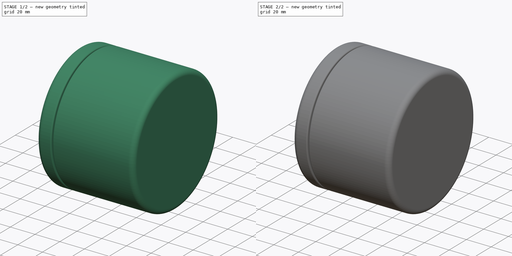
[diagram: build sequence overview — one tinted view per stage of 2, left to right]
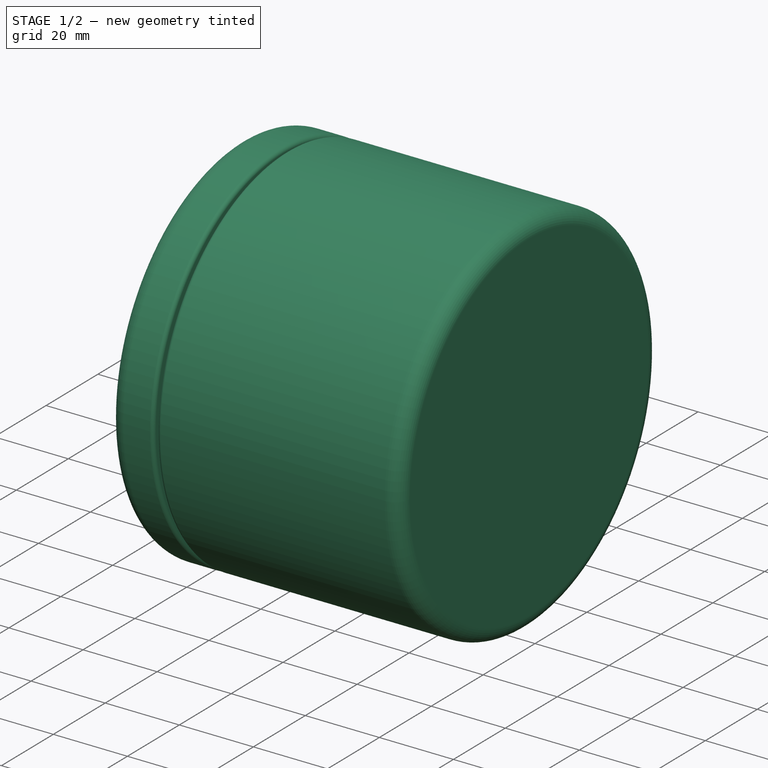
[diagram: stage 1 of 2 — iso view after this stage's code; geometry added in this stage tinted green]
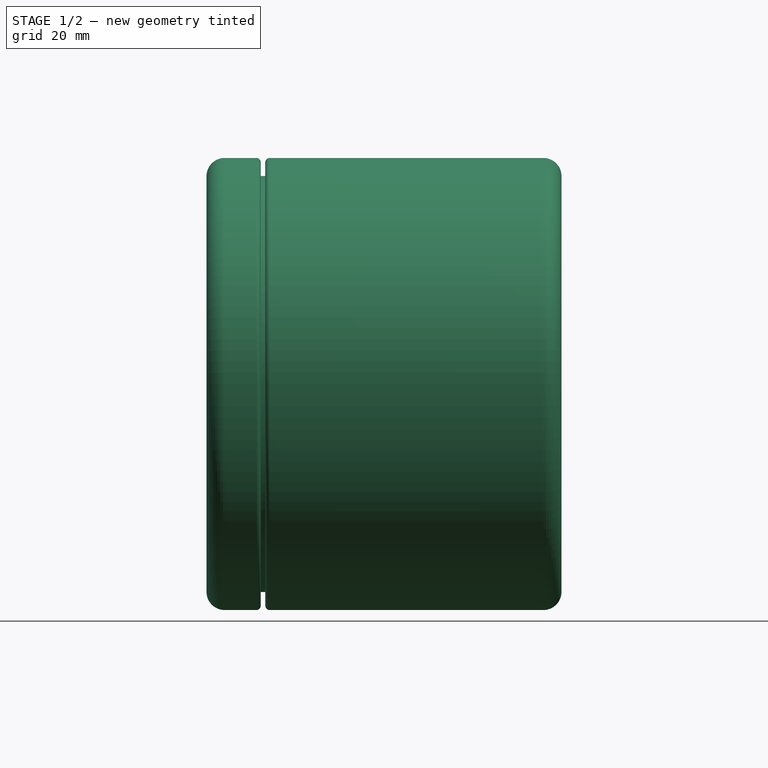
[diagram: stage 1 of 2 — front view after this stage's code; geometry added in this stage tinted green]
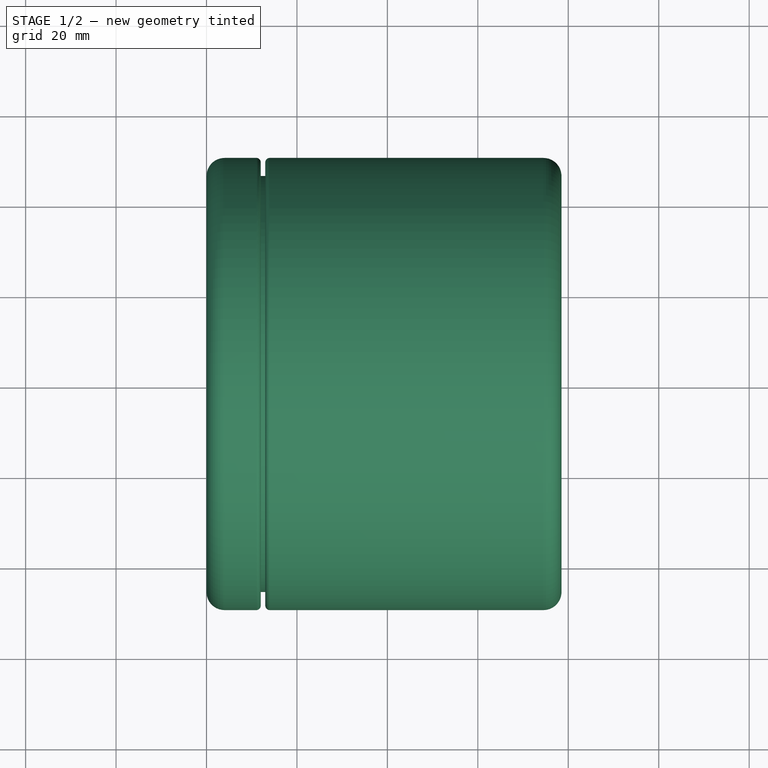
[diagram: stage 1 of 2 — top view after this stage's code; geometry added in this stage tinted green]
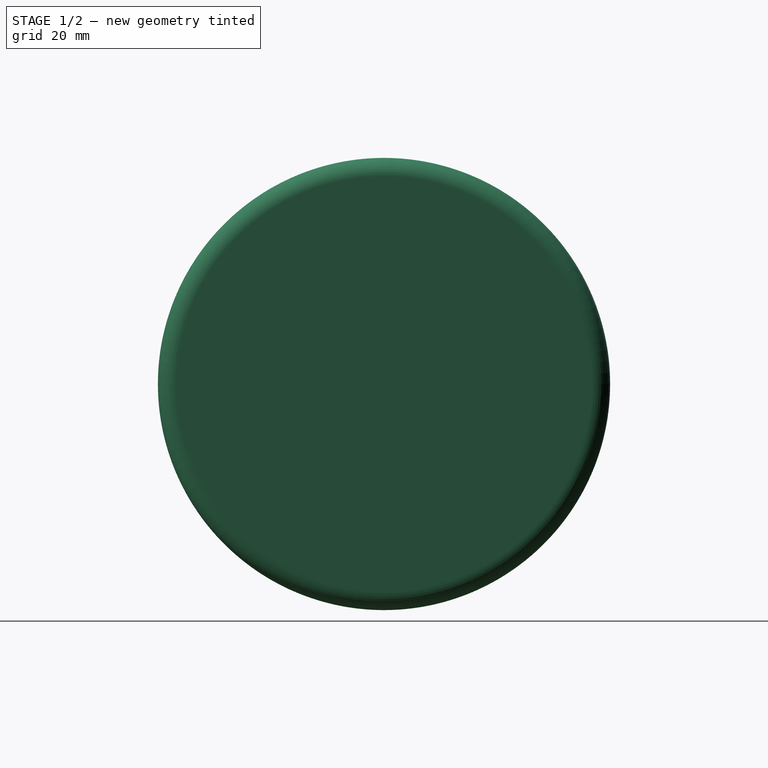
[diagram: stage 1 of 2 — right view after this stage's code; geometry added in this stage tinted green]
FCSTD DOCUMENT  (FreeCAD 0.19R24267 +99 (Git))
Label: housing
License: All rights reserved
LicenseURL: http://en.wikipedia.org/wiki/All_rights_reserved
objects: TechDraw::DrawViewDimension×17, Sketcher::SketchObject×5, PartDesign::Revolution×4, PartDesign::Body×4, TechDraw::DrawViewPart×3, TechDraw::DrawSVGTemplate×2, TechDraw::DrawViewSection×2, TechDraw::DrawPage×2, Spreadsheet::Sheet×1, TechDraw::DrawViewDimExtent×1
note: 17 computed .brp shape members not serialized (recipe doc carries the construction recipe); baked Part::Feature solids carry a one-line shape summary decoded from their .brp

FEATURE [Sketcher::SketchObject] Sketch
  FullyConstrained = true
  MapMode = 5
  Support = -> [XY_Plane]
  expr: Constraints[43] = Spreadsheet.B12
  expr: Constraints[23] = Spreadsheet.B4
  expr: Constraints[27] = Spreadsheet.B1
  expr: Constraints[30] = Spreadsheet.C3
  expr: Constraints[25] = Spreadsheet.B4 / 2
  expr: Constraints[31] = Spreadsheet.B2 - Spreadsheet.B3 - Spreadsheet.B11 + Spreadsheet.B12
  expr: Constraints[28] = Spreadsheet.B6
  expr: Constraints[24] = Spreadsheet.B4 / 2
  expr: Constraints[37] = Spreadsheet.B9
  expr: Constraints[42] = Spreadsheet.B8
  expr: Constraints[26] = Spreadsheet.B10
  sketch-geometry (16):
    g0: ArcOfCircle CenterX=4 CenterY=-38 CenterZ=0 NormalX=0 NormalY=0 NormalZ=1 AngleXU=0 Radius=4 StartAngle=0 EndAngle=3.14159
    g1: LineSegment StartX=0 StartY=-38 StartZ=0 EndX=0 EndY=-46 EndZ=0
    g2: LineSegment StartX=4 StartY=-50 StartZ=0 EndX=11 EndY=-50 EndZ=0
    g3: LineSegment StartX=8 StartY=-38 StartZ=0 EndX=8 EndY=-41 EndZ=0
    g4: LineSegment StartX=8 StartY=-41 StartZ=0 EndX=7 EndY=-42 EndZ=0
    g5: LineSegment StartX=7 StartY=-42 StartZ=0 EndX=8 EndY=-43 EndZ=0
    g6: LineSegment StartX=8 StartY=-43 StartZ=0 EndX=9 EndY=-42 EndZ=0
    g7: LineSegment StartX=9 StartY=-42 StartZ=0 EndX=19 EndY=-42 EndZ=0
    g8: LineSegment StartX=20 StartY=-43 StartZ=0 EndX=20 EndY=-46 EndZ=0
    g9: LineSegment StartX=20 StartY=-46 StartZ=0 EndX=12 EndY=-46 EndZ=0
    g10: LineSegment StartX=12 StartY=-49 StartZ=0 EndX=12 EndY=-46 EndZ=0
    g11: ArcOfCircle CenterX=4 CenterY=-46 CenterZ=0 NormalX=0 NormalY=0 NormalZ=1 AngleXU=0 Radius=4 StartAngle=3.14159 EndAngle=4.71239
    g12: ArcOfCircle CenterX=11 CenterY=-49 CenterZ=0 NormalX=0 NormalY=0 NormalZ=1 AngleXU=0 Radius=1 StartAngle=4.71239 EndAngle=6.28319
    g13: GeomPoint X=12 Y=-50 Z=0
    g14: ArcOfCircle CenterX=19 CenterY=-43 CenterZ=0 NormalX=0 NormalY=0 NormalZ=1 AngleXU=0 Radius=1 StartAngle=-2.7e-15 EndAngle=1.5708
    g15: GeomPoint X=20 Y=-42 Z=0
  constraints (44):
    c: Horizontal(g0,g0)
    c: Horizontal(g0,g0)
    c: Coincident(g1,g0)
    c: Vertical(g1)
    c: Horizontal(g2)
    c: Coincident(g3,g0)
    c: Vertical(g3)
    c: Coincident(g4,g3)
    c: Coincident(g5,g4)
    c: Coincident(g6,g5)
    c: Coincident(g7,g6)
    c: Horizontal(g7)
    c: Vertical(g8)
    c: Coincident(g9,g8)
    c: Horizontal(g9)
    c: Coincident(g10,g9)
    c: Vertical(g10)
    c: Perpendicular(g6,g5)
    c: Angle(g6,g7) = 2.35619
    c: Equal(g6,g5)
    c: Equal(g4,g6)
    c: Tangent(g1,g11) = -1.5708
    c: Tangent(g2,g11) = -1.5708
    c: DistanceX(g0,g0) = 8
    c: DistanceY(g8,g15) = 4
    c: DistanceY(g13,g10) = 4
    c: DistanceX(g1,g11) = 4
    c: DistanceY(g6,g-1) = 42
    c: DistanceY(g6,g0) = 4
    c: Parallel(g6,g4)
    c: Distance(g6,g3) = 1.41421
    c: DistanceX(g0,g15) = 12
    c: PointOnObject(g0,g-2)
    c: PointOnObject(g13,g10)
    c: PointOnObject(g13,g2)
    c: Tangent(g10,g12) = -1.5708
    c: Tangent(g2,g12) = -1.5708
    c: DistanceX(g12,g10) = 1
    c: PointOnObject(g15,g7)
    c: PointOnObject(g15,g8)
    c: Tangent(g7,g14) = 1.5708
    c: Tangent(g8,g14) = 1.5708
    c: DistanceX(g14,g8) = 1
    c: DistanceX(g9,g8) = 8
FEATURE [Spreadsheet::Sheet] Spreadsheet
  cells = A1=Window Radius; B1==42mm; A2=Window Thickness; B2==20mm; A3=Window edge avoidance; B3==1mm; C3==B3 * sqrt(2); A4=Wall thickness; B4==8mm; A5=Gasket thickness; B5==0.5mm; A6=Window rim clamp depth; B6==4mm; A7=Electronics stackup; B7==42mm; A8=Inside fillet radius; B8==1mm; A9=Weld fillet radius; B9==1mm; A10=Outside fillet radius; B10==4mm; A11=Housing split offset from inside window; B11==15mm; A12=Weld overlap; B12==8mm; A13=Cap Diameter; B13==16mm; A14=Cap Height; B14==38mm; A15=PCB Thickness; B15==1.6mm; A16=Cap Radial Offset; B16==(7.1 - 6.5) * 25.4mm; A17=PCB Radius; B17==1.1 * 25.4mm; A18=Solar cell X; B18==52mm; A19=Solar cell Y; B19==19mm
FEATURE [PartDesign::Revolution] Revolution
  Angle = 0
  Axis = (1,0,0)
  Base = (0,0,0)
  Profile = -> Sketch
  ReferenceAxis = -> Sketch [H_Axis]
  Reversed = true
FEATURE [PartDesign::Body] Body001  label="Window"
  Group = -> [Sketch001,Revolution001]
  Origin = -> Origin001
  Tip = -> Revolution001
FEATURE [Sketcher::SketchObject] Sketch002
  FullyConstrained = true
  MapMode = 5
  Support = -> [XY_Plane002]
  expr: Constraints[50] = Spreadsheet.B8
  expr: Constraints[19] = Spreadsheet.C3
  expr: Constraints[23] = Spreadsheet.C3
  expr: Constraints[22] = Spreadsheet.B4 + Spreadsheet.B5 + Spreadsheet.B2 + Spreadsheet.B7
  expr: Constraints[27] = Spreadsheet.B8
  expr: Constraints[17] = Spreadsheet.B1 + Spreadsheet.B4
  expr: Constraints[28] = Spreadsheet.B6 - Spreadsheet.B8 - Spreadsheet.B3
  expr: Constraints[21] = Spreadsheet.B4
  expr: Constraints[16] = Spreadsheet.B4 / 2
  expr: Constraints[47] = Spreadsheet.B11 + Spreadsheet.B3
  expr: Constraints[46] = Spreadsheet.B12
  expr: Constraints[26] = Spreadsheet.B4 + Spreadsheet.B5 * 2 + Spreadsheet.B2
  expr: Constraints[38] = Spreadsheet.B10
  expr: Constraints[20] = Spreadsheet.B1 - Spreadsheet.B6
  expr: Constraints[15] = Spreadsheet.B4 / 2
  expr: Constraints[33] = Spreadsheet.B9
  sketch-geometry (20):
    g0: LineSegment StartX=14 StartY=-50 StartZ=0 EndX=74.5 EndY=-50 EndZ=0
    g1: LineSegment StartX=78.5 StartY=-46 StartZ=0 EndX=78.5 EndY=0 EndZ=0
    g2: LineSegment StartX=78.5 StartY=0 StartZ=0 EndX=70.5 EndY=0 EndZ=0
    g3: LineSegment StartX=70.5 StartY=0 StartZ=0 EndX=70.5 EndY=-38 EndZ=0
    g4: LineSegment StartX=70.5 StartY=-38 StartZ=0 EndX=30 EndY=-38 EndZ=0
    g5: LineSegment StartX=29 StartY=-39 StartZ=0 EndX=29 EndY=-41 EndZ=0
    g6: LineSegment StartX=29 StartY=-41 StartZ=0 EndX=30 EndY=-42 EndZ=0
    g7: LineSegment StartX=30 StartY=-42 StartZ=0 EndX=29 EndY=-43 EndZ=0
    g8: LineSegment StartX=21 StartY=-46 StartZ=0 EndX=13 EndY=-46 EndZ=0
    g9: LineSegment StartX=13 StartY=-46 StartZ=0 EndX=13 EndY=-49 EndZ=0
    g10: ArcOfCircle CenterX=30 CenterY=-39 CenterZ=0 NormalX=0 NormalY=0 NormalZ=1 AngleXU=0 Radius=1 StartAngle=1.5708 EndAngle=3.14159
    g11: ArcOfCircle CenterX=14 CenterY=-49 CenterZ=0 NormalX=0 NormalY=0 NormalZ=1 AngleXU=0 Radius=1 StartAngle=3.14159 EndAngle=4.71239
    g12: GeomPoint X=13 Y=-50 Z=0
    g13: GeomPoint X=28 Y=-42 Z=0
    g14: ArcOfCircle CenterX=74.5 CenterY=-46 CenterZ=0 NormalX=0 NormalY=0 NormalZ=1 AngleXU=0 Radius=4 StartAngle=4.71239 EndAngle=6.28319
    g15: GeomPoint X=78.5 Y=-50 Z=0
    g16: LineSegment StartX=28 StartY=-42 StartZ=0 EndX=29 EndY=-43 EndZ=0
    g17: LineSegment StartX=21 StartY=-46 StartZ=0 EndX=21 EndY=-43 EndZ=0
    g18: LineSegment StartX=22 StartY=-42 StartZ=0 EndX=28 EndY=-42 EndZ=0
    g19: ArcOfCircle CenterX=22 CenterY=-43 CenterZ=0 NormalX=0 NormalY=0 NormalZ=1 AngleXU=0 Radius=1 StartAngle=1.5708 EndAngle=3.14159
  constraints (52):
    c: Horizontal(g0)
    c: PointOnObject(g1,g-1)
    c: Vertical(g1)
    c: Coincident(g1,g2)
    c: PointOnObject(g2,g-1)
    c: Coincident(g2,g3)
    c: Vertical(g3)
    c: Coincident(g3,g4)
    c: Horizontal(g4)
    c: Vertical(g5)
    c: Coincident(g5,g6)
    c: Coincident(g6,g7)
    c: Horizontal(g8)
    c: Coincident(g8,g9)
    c: Vertical(g9)
    c: DistanceY(g12,g9) = 4
    c: DistanceY(g8,g13) = 4
    c: DistanceY(g15,g1) = 50
    c: Angle(g6,g5) = 2.35619
    c: Distance(g7,g6) = 1.41421
    c: DistanceY(g3,g2) = 38
    c: DistanceX(g2,g1) = 8
    c: DistanceX(g-1,g2) = 70.5
    c: Distance(g6) = 1.41421
    c: Tangent(g4,g10) = -1.5708
    c: Tangent(g5,g10) = -1.5708
    c: DistanceX(g-1,g5) = 29
    c: DistanceY(g10,g4) = 1
    c: DistanceY(g5,g5) = 2
    c: PointOnObject(g12,g0)
    c: PointOnObject(g12,g9)
    c: Tangent(g0,g11) = -1.5708
    c: Tangent(g9,g11) = -1.5708
    c: DistanceX(g9,g11) = 1
    c: PointOnObject(g15,g0)
    c: PointOnObject(g15,g1)
    c: Tangent(g0,g14) = -1.5708
    c: Tangent(g1,g14) = -1.5708
    c: DistanceX(g14,g14) = 4
    c: Coincident(g16,g13)
    c: Coincident(g16,g7)
    c: Parallel(g16,g6)
    c: Coincident(g17,g8)
    c: Vertical(g17)
    c: Coincident(g18,g16)
    c: Perpendicular(g7,g16)
    c: DistanceX(g8,g8) = 8
    c: DistanceX(g8,g5) = 16
    c: Tangent(g18,g19) = 1.5708
    c: Tangent(g17,g19) = 1.5708
    c: DistanceX(g17,g19) = 1
    c: Horizontal(g18,g16)
FEATURE [PartDesign::Revolution] Revolution002
  Angle = 360
  Axis = (1,0,0)
  Base = (0,0,0)
  Profile = -> Sketch002
  ReferenceAxis = -> Sketch002 [H_Axis]
  Reversed = true
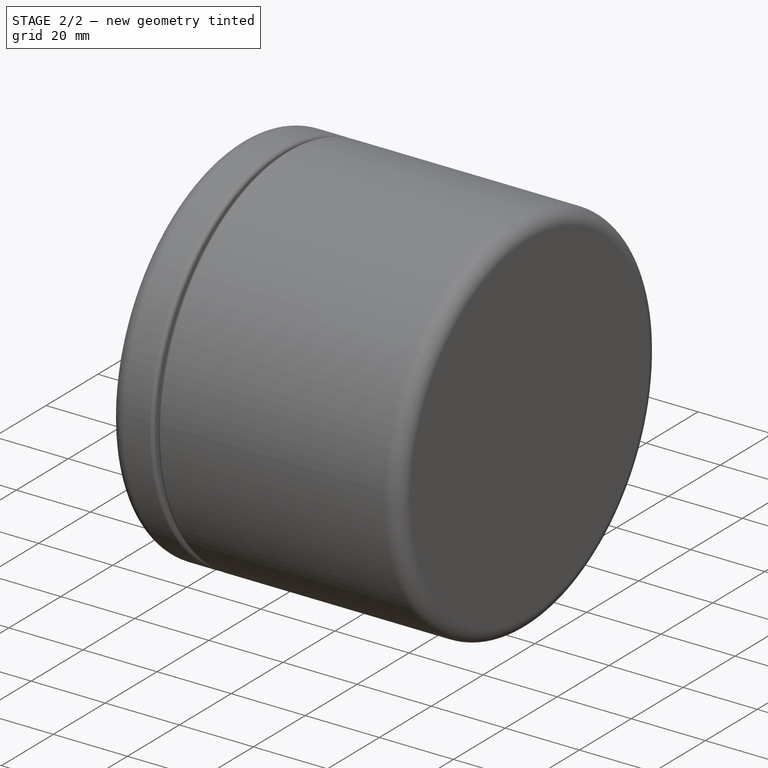
[diagram: stage 2 of 2 — iso view after this stage's code; geometry added in this stage tinted green]
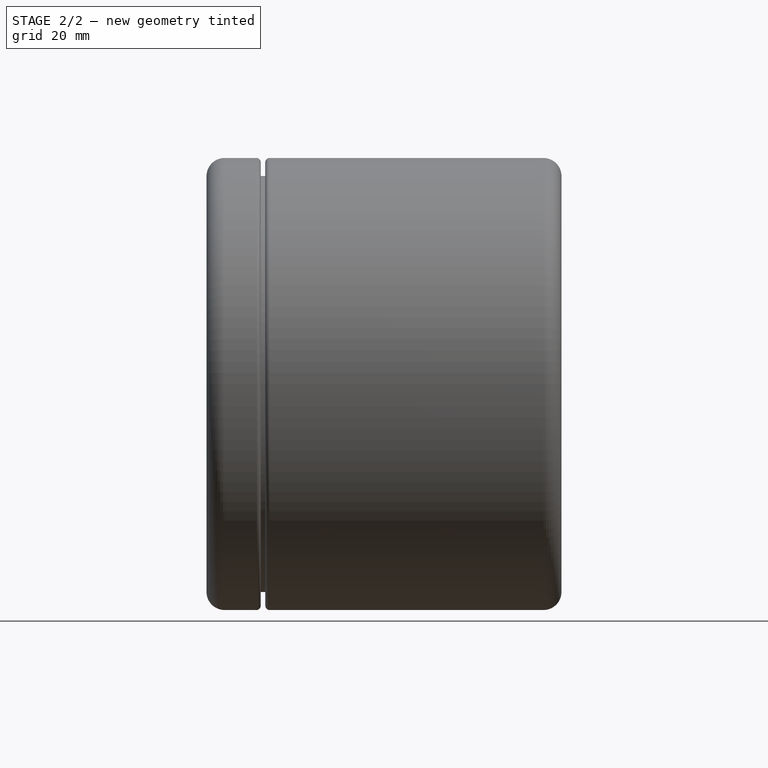
[diagram: stage 2 of 2 — front view after this stage's code; geometry added in this stage tinted green]
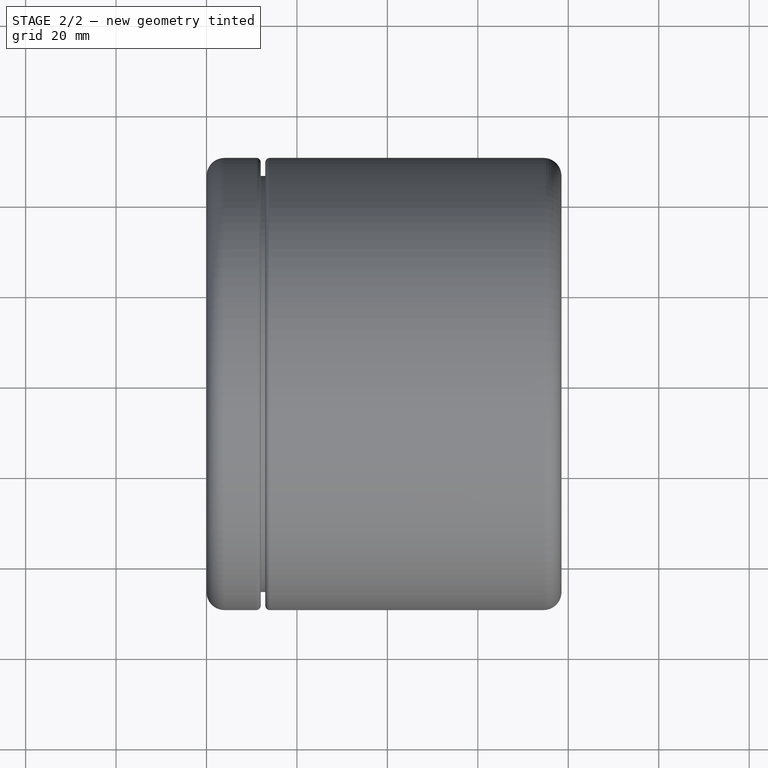
[diagram: stage 2 of 2 — top view after this stage's code; geometry added in this stage tinted green]
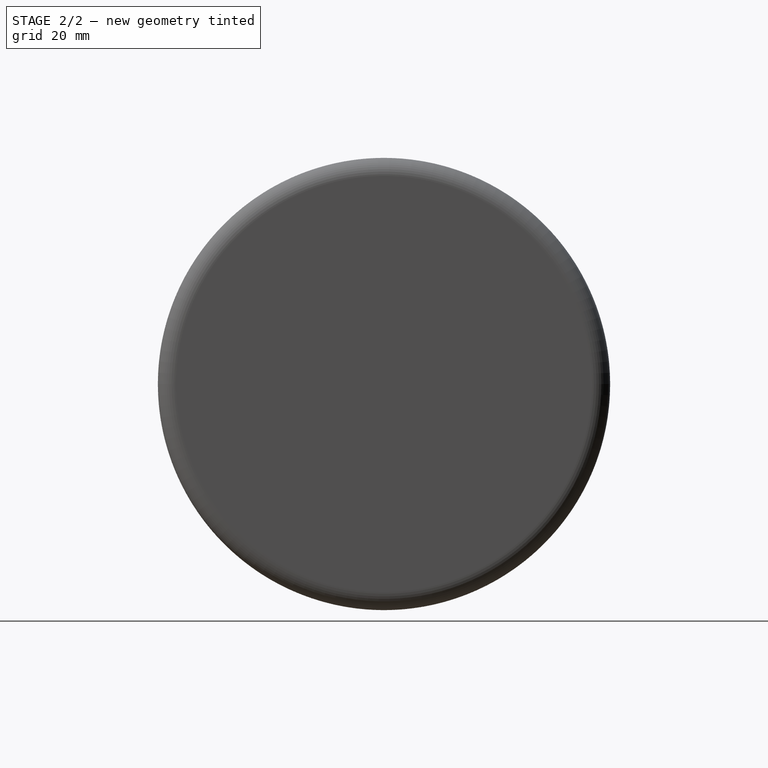
[diagram: stage 2 of 2 — right view after this stage's code; geometry added in this stage tinted green]
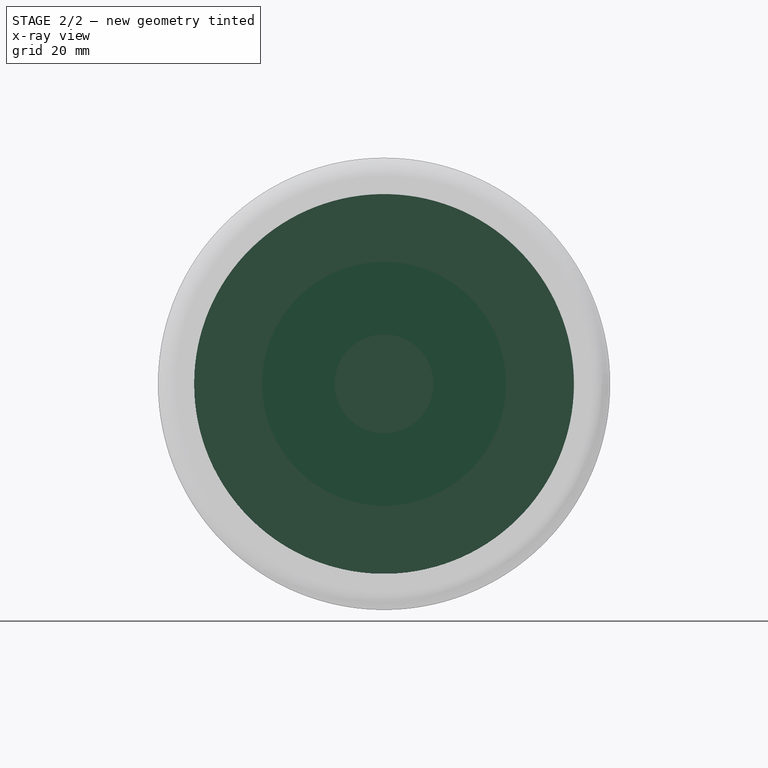
[diagram: stage 2 of 2 — x-ray composite at the right view; earlier geometry ghosted, this stage's added geometry solid]
FEATURE [PartDesign::Body] Body  label="Front"
  Group = -> [Sketch,Revolution]
  Origin = -> Origin
  Tip = -> Revolution
FEATURE [Sketcher::SketchObject] Sketch001
  FullyConstrained = true
  MapMode = 5
  Support = -> [XY_Plane001]
  expr: Constraints[9] = Spreadsheet.B2
  expr: Constraints[10] = Spreadsheet.B1
  expr: Constraints[11] = Spreadsheet.B4 + Spreadsheet.B5
  sketch-geometry (4):
    g0: LineSegment StartX=8.5 StartY=-42 StartZ=0 EndX=28.5 EndY=-42 EndZ=0
    g1: LineSegment StartX=28.5 StartY=-42 StartZ=0 EndX=28.5 EndY=0 EndZ=0
    g2: LineSegment StartX=28.5 StartY=0 StartZ=0 EndX=8.5 EndY=0 EndZ=0
    g3: LineSegment StartX=8.5 StartY=0 StartZ=0 EndX=8.5 EndY=-42 EndZ=0
  constraints (12):
    c: Coincident(g0,g1)
    c: Coincident(g1,g2)
    c: Coincident(g2,g3)
    c: Coincident(g3,g0)
    c: Horizontal(g0)
    c: Horizontal(g2)
    c: Vertical(g1)
    c: Vertical(g3)
    c: PointOnObject(g1,g-1)
    c: DistanceX(g2,g2) = 20
    c: DistanceY(g1,g1) = 42
    c: DistanceX(g-1,g2) = 8.5
FEATURE [PartDesign::Revolution] Revolution001
  Angle = 360
  Axis = (1,0,0)
  Base = (0,0,0)
  Profile = -> Sketch001
  ReferenceAxis = -> Sketch001 [H_Axis]
  Reversed = true
FEATURE [PartDesign::Body] Body002  label="Back"
  Group = -> [Sketch002,Revolution002]
  Origin = -> Origin002
  Tip = -> Revolution002
FEATURE [Sketcher::SketchObject] Sketch003
  FullyConstrained = true
  MapMode = 5
  Support = -> [XY_Plane003]
  expr: Constraints[17] = Spreadsheet.B17
  expr: Constraints[21] = Spreadsheet.B15
  expr: Constraints[18] = Spreadsheet.B13
  expr: Constraints[23] = Spreadsheet.B4 + Spreadsheet.B2 + Spreadsheet.B7
  expr: Constraints[19] = Spreadsheet.B14
  sketch-geometry (8):
    g0: LineSegment StartX=30.4 StartY=0 StartZ=0 EndX=30.4 EndY=-27.94 EndZ=0
    g1: LineSegment StartX=30.4 StartY=-27.94 StartZ=0 EndX=32 EndY=-27.94 EndZ=0
    g2: LineSegment StartX=32 StartY=-27.94 StartZ=0 EndX=32 EndY=-26.94 EndZ=0
    g3: LineSegment StartX=32 StartY=-26.94 StartZ=0 EndX=70 EndY=-26.94 EndZ=0
    g4: LineSegment StartX=70 StartY=-26.94 StartZ=0 EndX=70 EndY=-10.94 EndZ=0
    g5: LineSegment StartX=70 StartY=-10.94 StartZ=0 EndX=32 EndY=-10.94 EndZ=0
    g6: LineSegment StartX=32 StartY=-10.94 StartZ=0 EndX=32 EndY=0 EndZ=0
    g7: LineSegment StartX=32 StartY=0 StartZ=0 EndX=30.4 EndY=0 EndZ=0
  constraints (24):
    c: PointOnObject(g0,g-1)
    c: Vertical(g0)
    c: Coincident(g1,g0)
    c: Horizontal(g1)
    c: Coincident(g2,g1)
    c: Vertical(g2)
    c: Coincident(g3,g2)
    c: Horizontal(g3)
    c: Coincident(g4,g3)
    c: Vertical(g4)
    c: Coincident(g5,g4)
    c: Horizontal(g5)
    c: Coincident(g6,g5)
    c: PointOnObject(g6,g-1)
    c: Vertical(g6)
    c: Coincident(g7,g6)
    c: Coincident(g7,g0)
    c: DistanceY(g0,g0) = 27.94
    c: DistanceY(g3,g4) = 16
    c: DistanceX(g5,g4) = 38
    c: Vertical(g2,g5)
    c: DistanceX(g0,g1) = 1.6
    c: DistanceY(g1,g2) = 1
    c: DistanceX(g-1,g4) = 70
FEATURE [PartDesign::Revolution] Revolution003
  Angle = 360
  Axis = (1,0,0)
  Base = (0,0,0)
  Profile = -> Sketch003
  ReferenceAxis = -> Sketch003 [H_Axis]
  Reversed = true
FEATURE [PartDesign::Body] Body003
  Group = -> [Sketch003,Revolution003]
  Origin = -> Origin003
  Tip = -> Revolution003
FEATURE [TechDraw::DrawSVGTemplate] Template
  EditableTexts = APPROVER_NAME=N/A; AUTHOR_NAME=TRAVIS HOWSE; DATE=2022-01-28; DN=DN; DOCUMENT_TYPE=Mechanical assembly drawing; OWNER_NAME=TRAVIS HOWSE; PM=6061 Alu; PN=Housing; REVISION=REV B; RIGHTS=(R) DO NOT DUPLICATE THIS DRAWING TO THIRD PARTIES WITHOUT OWNER'S PERMISSION !; SCALE=M x:x; SHEET=1 of 1; SIZE=A4; TITLELINE-1=Blinker Housing; TOLERANCE=+/- ?
  Height = 210
  Orientation = 1
  Width = 297
FEATURE [TechDraw::DrawViewPart] View  label="Front Piece"
  CoarseView = false
  Direction = (0,0,1)
  Focus = 100
  HardHidden = false
  IsoCount = 0
  IsoHidden = false
  IsoVisible = false
  LockPosition = false
  Perspective = false
  Rotation = 0
  Scale = 1.2
  ScaleType = 0
  SeamHidden = false
  SeamVisible = true
  SmoothHidden = false
  SmoothVisible = true
  Source = -> [Revolution]
  X = -55.4571
  XDirection = (1,0,0)
  Y = 114.504
FEATURE [TechDraw::DrawViewSection] SectionView  label="Section"
  BaseView = -> View
  CoarseView = false
  CutSurfaceDisplay = 2
  Direction = (0,-1,0)
  FileGeomPattern = C:/Program Files/FreeCAD 0.19/data/Mod/TechDraw/PAT/FCPAT.pat
  FileHatchPattern = C:/Program Files/FreeCAD 0.19/data/Mod/TechDraw/Patterns/simple.svg
  Focus = 100
  FuseBeforeCut = false
  HardHidden = false
  HatchScale = 1
  IsoCount = 0
  IsoHidden = false
  IsoVisible = false
  LockPosition = false
  NameGeomPattern = Diamond
  Perspective = false
  Rotation = 0
  Scale = 1.2
  ScaleType = 0
  SeamHidden = false
  SeamVisible = true
  SectionDirection = 2
  SectionNormal = (0,-1,0)
  SectionOrigin = (8,0,0)
  SectionSymbol = Section
  SmoothHidden = false
  SmoothVisible = true
  Source = -> [Revolution]
  X = 47.5918
  XDirection = (1,0,0)
  Y = 120
FEATURE [TechDraw::DrawViewDimension] Dimension
  Arbitrary = false
  ArbitraryTolerances = false
  EqualTolerance = true
  FormatSpec = R%.2f
  FormatSpecOverTolerance = %+.2f
  FormatSpecUnderTolerance = %+.2f
  Inverted = false
  LockPosition = false
  MeasureType = 1
  OverTolerance = 0
  References2D = -> [SectionView]
  Rotation = 0
  Scale = 1.2
  ScaleType = 0
  TheoreticalExact = false
  Type = 4
  UnderTolerance = 0
  X = -19.1353
  Y = 39.2961
FEATURE [TechDraw::DrawViewDimension] Dimension001
  Arbitrary = false
  ArbitraryTolerances = false
  EqualTolerance = true
  FormatSpec = %.2f
  FormatSpecOverTolerance = %+.2f
  FormatSpecUnderTolerance = %+.2f
  Inverted = false
  LockPosition = false
  MeasureType = 1
  OverTolerance = 0
  References2D = -> [SectionView]
  Rotation = 0
  Scale = 1.2
  ScaleType = 0
  TheoreticalExact = false
  Type = 2
  UnderTolerance = 0
  X = 26.6822
  Y = -2.30593
FEATURE [TechDraw::DrawViewDimension] Dimension003
  Arbitrary = false
  ArbitraryTolerances = false
  EqualTolerance = true
  FormatSpec = %.2f
  FormatSpecOverTolerance = %+.2f
  FormatSpecUnderTolerance = %+.2f
  Inverted = false
  LockPosition = false
  MeasureType = 1
  OverTolerance = 0
  References2D = -> [SectionView]
  Rotation = 0
  Scale = 1.2
  ScaleType = 0
  TheoreticalExact = false
  Type = 2
  UnderTolerance = 0
  X = 33.4944
  Y = -2.47518
FEATURE [TechDraw::DrawViewDimension] Dimension004
  Arbitrary = false
  ArbitraryTolerances = false
  EqualTolerance = true
  FormatSpec = %.2f
  FormatSpecOverTolerance = %+.2f
  FormatSpecUnderTolerance = %+.2f
  Inverted = false
  LockPosition = false
  MeasureType = 1
  OverTolerance = 0
  References2D = -> [SectionView]
  Rotation = 0
  Scale = 1.2
  ScaleType = 0
  TheoreticalExact = false
  Type = 2
  UnderTolerance = 0
  X = 41.5918
  Y = -2.17678
FEATURE [TechDraw::DrawViewDimension] Dimension005
  Arbitrary = false
  ArbitraryTolerances = false
  EqualTolerance = true
  FormatSpec = %.2f
  FormatSpecOverTolerance = %+.2f
  FormatSpecUnderTolerance = %+.2f
  Inverted = false
  LockPosition = false
  MeasureType = 1
  OverTolerance = 0
  References2D = -> [SectionView]
  Rotation = 0
  Scale = 1.2
  ScaleType = 0
  TheoreticalExact = false
  Type = 2
  UnderTolerance = 0
  X = 19.5875
  Y = -2.18329
FEATURE [TechDraw::DrawViewDimension] Dimension006
  Arbitrary = false
  ArbitraryTolerances = false
  EqualTolerance = true
  FormatSpec = R%.2f
  FormatSpecOverTolerance = %+.2f
  FormatSpecUnderTolerance = %+.2f
  Inverted = false
  LockPosition = false
  MeasureType = 1
  OverTolerance = 0
  References2D = -> [SectionView]
  Rotation = 0
  Scale = 1.2
  ScaleType = 0
  TheoreticalExact = false
  Type = 4
  UnderTolerance = 0
  X = -20.9542
  Y = 65.1755
FEATURE [TechDraw::DrawViewPart] View001  label="Rear Piece"
  CoarseView = false
  Direction = (0,0,1)
  Focus = 100
  HardHidden = false
  IsoCount = 0
  IsoHidden = false
  IsoVisible = false
  LockPosition = false
  Perspective = false
  Rotation = 0
  Scale = 1.2
  ScaleType = 0
  SeamHidden = false
  SeamVisible = true
  SmoothHidden = false
  SmoothVisible = true
  Source = -> [Revolution002]
  X = 366.54
  XDirection = (1,0,0)
  Y = 138.268
FEATURE [TechDraw::DrawViewSection] SectionView001  label="Section  - "
  BaseView = -> View001
  CoarseView = false
  CutSurfaceDisplay = 2
  Direction = (0,-1,0)
  FileGeomPattern = C:/Program Files/FreeCAD 0.19/data/Mod/TechDraw/PAT/FCPAT.pat
  FileHatchPattern = C:/Program Files/FreeCAD 0.19/data/Mod/TechDraw/Patterns/simple.svg
  Focus = 100
  FuseBeforeCut = false
  HardHidden = false
  HatchScale = 1
  IsoCount = 0
  IsoHidden = false
  IsoVisible = false
  LockPosition = false
  NameGeomPattern = Diamond
  Perspective = false
  Rotation = 0
  Scale = 1.2
  ScaleType = 0
  SeamHidden = false
  SeamVisible = true
  SectionDirection = 2
  SectionNormal = (0,-1,0)
  SectionOrigin = (41.15,0,0)
  SmoothHidden = false
  SmoothVisible = true
  Source = -> [Revolution002]
  X = 193.525
  XDirection = (1,0,0)
  Y = 120
FEATURE [TechDraw::DrawViewDimension] Dimension009
  Arbitrary = false
  ArbitraryTolerances = false
  EqualTolerance = true
  FormatSpec = %.2f
  FormatSpecOverTolerance = %+.2f
  FormatSpecUnderTolerance = %+.2f
  Inverted = false
  LockPosition = false
  MeasureType = 1
  OverTolerance = 0
  References2D = -> [SectionView001]
  Rotation = 0
  Scale = 1.2
  ScaleType = 0
  TheoreticalExact = false
  Type = 2
  UnderTolerance = 0
  X = -69.7033
  Y = -3.83117
FEATURE [TechDraw::DrawViewDimension] Dimension011
  Arbitrary = false
  ArbitraryTolerances = false
  EqualTolerance = true
  FormatSpec = %.2f
  FormatSpecOverTolerance = %+.2f
  FormatSpecUnderTolerance = %+.2f
  Inverted = false
  LockPosition = false
  MeasureType = 1
  OverTolerance = 0
  References2D = -> [SectionView001]
  Rotation = 0
  Scale = 1.2
  ScaleType = 0
  TheoreticalExact = false
  Type = 2
  UnderTolerance = 0
  X = -62.4829
  Y = -2.66162
FEATURE [TechDraw::DrawViewDimension] Dimension012
  Arbitrary = false
  ArbitraryTolerances = false
  EqualTolerance = true
  FormatSpec = %.2f
  FormatSpecOverTolerance = %+.2f
  FormatSpecUnderTolerance = %+.2f
  Inverted = false
  LockPosition = false
  MeasureType = 1
  OverTolerance = 0
  References2D = -> [SectionView001]
  Rotation = 0
  Scale = 1.2
  ScaleType = 0
  TheoreticalExact = false
  Type = 2
  UnderTolerance = 0
  X = -55.8071
  Y = -2.96126
FEATURE [TechDraw::DrawViewDimension] Dimension013
  Arbitrary = false
  ArbitraryTolerances = false
  EqualTolerance = true
  FormatSpec = %.2f
  FormatSpecOverTolerance = %+.2f
  FormatSpecUnderTolerance = %+.2f
  Inverted = false
  LockPosition = false
  MeasureType = 1
  OverTolerance = 0
  References2D = -> [SectionView001]
  Rotation = 0
  Scale = 1.2
  ScaleType = 0
  TheoreticalExact = false
  Type = 1
  UnderTolerance = 0
  X = -4.46482
  Y = 71.5935
FEATURE [TechDraw::DrawViewDimension] Dimension014
  Arbitrary = false
  ArbitraryTolerances = false
  EqualTolerance = true
  FormatSpec = %.2f
  FormatSpecOverTolerance = %+.2f
  FormatSpecUnderTolerance = %+.2f
  Inverted = false
  LockPosition = false
  MeasureType = 1
  OverTolerance = 0
  References2D = -> [SectionView001]
  Rotation = 0
  Scale = 1.2
  ScaleType = 0
  TheoreticalExact = false
  Type = 1
  UnderTolerance = 0
  X = 4.93264
  Y = 42.2872
FEATURE [TechDraw::DrawViewDimension] Dimension015
  Arbitrary = false
  ArbitraryTolerances = false
  EqualTolerance = true
  FormatSpec = %.2f
  FormatSpecOverTolerance = %+.2f
  FormatSpecUnderTolerance = %+.2f
  Inverted = false
  LockPosition = false
  MeasureType = 1
  OverTolerance = 0
  References2D = -> [SectionView001]
  Rotation = 0
  Scale = 1.2
  ScaleType = 0
  TheoreticalExact = false
  Type = 1
  UnderTolerance = 0
  X = -35.4276
  Y = -66.8892
FEATURE [TechDraw::DrawViewDimension] Dimension016
  Arbitrary = false
  ArbitraryTolerances = false
  EqualTolerance = true
  FormatSpec = %.2f
  FormatSpecOverTolerance = %+.2f
  FormatSpecUnderTolerance = %+.2f
  Inverted = false
  LockPosition = false
  MeasureType = 1
  OverTolerance = 0
  References2D = -> [SectionView001]
  Rotation = 0
  Scale = 1.2
  ScaleType = 0
  TheoreticalExact = false
  Type = 1
  UnderTolerance = 0
  X = -25.3579
  Y = -71.7965
FEATURE [TechDraw::DrawViewDimension] Dimension017
  Arbitrary = false
  ArbitraryTolerances = false
  EqualTolerance = true
  FormatSpec = %.2f
  FormatSpecOverTolerance = %+.2f
  FormatSpecUnderTolerance = %+.2f
  Inverted = false
  LockPosition = false
  MeasureType = 1
  OverTolerance = 0
  References2D = -> [SectionView]
  Rotation = 0
  Scale = 1.2
  ScaleType = 0
  TheoreticalExact = false
  Type = 1
  UnderTolerance = 0
  X = -5.95251
  Y = -74.1876
FEATURE [TechDraw::DrawViewDimension] Dimension018
  Arbitrary = false
  ArbitraryTolerances = false
  EqualTolerance = true
  FormatSpec = %.2f
  FormatSpecOverTolerance = %+.2f
  FormatSpecUnderTolerance = %+.2f
  Inverted = false
  LockPosition = false
  MeasureType = 1
  OverTolerance = 0
  References2D = -> [SectionView]
  Rotation = 0
  Scale = 1.2
  ScaleType = 0
  TheoreticalExact = false
  Type = 1
  UnderTolerance = 0
  X = 4.29141
  Y = -74.2441
FEATURE [TechDraw::DrawViewDimension] Dimension019
  Arbitrary = false
  ArbitraryTolerances = false
  EqualTolerance = true
  FormatSpec = %.2f
  FormatSpecOverTolerance = %+.2f
  FormatSpecUnderTolerance = %+.2f
  Inverted = false
  LockPosition = false
  MeasureType = 1
  OverTolerance = 0
  References2D = -> [SectionView]
  Rotation = 0
  Scale = 1.2
  ScaleType = 0
  TheoreticalExact = false
  Type = 2
  UnderTolerance = 0
  X = -15.5188
  Y = -57.713
FEATURE [TechDraw::DrawViewDimension] Dimension020
  Arbitrary = false
  ArbitraryTolerances = false
  EqualTolerance = true
  FormatSpec = %.2f
  FormatSpecOverTolerance = %+.2f
  FormatSpecUnderTolerance = %+.2f
  Inverted = false
  LockPosition = false
  MeasureType = 1
  OverTolerance = 0
  References2D = -> [SectionView]
  Rotation = 0
  Scale = 1.2
  ScaleType = 0
  TheoreticalExact = false
  Type = 2
  UnderTolerance = 0
  X = -21.1767
  Y = -52.8
FEATURE [TechDraw::DrawViewDimExtent] DimExtent
  Arbitrary = false
  ArbitraryTolerances = false
  CosmeticTags = aa4e1587-57bf-4eb8-a79d-017b4bb09665 | ae504931-bddc-4502-be02-cb5a74f51690
  DirExtent = 1
  EqualTolerance = true
  FormatSpec = %.2f
  FormatSpecOverTolerance = %+.2f
  FormatSpecUnderTolerance = %+.2f
  Inverted = false
  LockPosition = false
  MeasureType = 1
  OverTolerance = 0
  References2D = -> [SectionView]
  Rotation = 0
  Scale = 1.2
  ScaleType = 0
  Source = -> [SectionView]
  TheoreticalExact = false
  Type = 2
  UnderTolerance = 0
  X = -26.9566
  Y = -44.9276
FEATURE [TechDraw::DrawPage] Page  label="Machining"
  KeepUpdated = true
  NextBalloonIndex = 1
  ProjectionType = 0
  Scale = 1.2
  Template = -> Template
  Views = -> [View,SectionView,Dimension,Dimension001,Dimension003,Dimension004,Dimension005,Dimension006,View001,SectionView001,Dimension009,Dimension011,Dimension012,Dimension013,Dimension014,Dimension015,Dimension016,Dimension017,Dimension018,Dimension019,Dimension020,DimExtent]
FEATURE [TechDraw::DrawSVGTemplate] Template001
  EditableTexts = APPROVER_NAME=APPROVER NAME; AUTHOR_NAME=AUTHOR NAME; DATE=YYYY-MM-DD; DN=DN; DOCUMENT_TYPE=Mechanical assembly drawing; OWNER_NAME=OWNER NAME; PM=PM; PN=PN; REVISION=REV A; RIGHTS=(R) DO NOT DUPLICATE THIS DRAWING TO THIRD PARTIES WITHOUT OWNER'S PERMISSION !; SCALE=M x:x; SHEET=99 of 99; SIZE=A4; TITLELINE-1=FreeCAD; TOLERANCE=+/- ?
  Height = 210
  Orientation = 1
  Width = 297
FEATURE [TechDraw::DrawViewPart] View002
  CoarseView = false
  Direction = (-1,0,0)
  Focus = 100
  HardHidden = false
  IsoCount = 0
  IsoHidden = false
  IsoVisible = false
  LockPosition = false
  Perspective = false
  Rotation = 0
  ScaleType = 0
  SeamHidden = false
  SeamVisible = true
  SmoothHidden = false
  SmoothVisible = true
  Source = -> [Revolution]
  X = 125.602
  XDirection = (0,-1,0)
  Y = 116.75
FEATURE [TechDraw::DrawPage] Page001  label="Solar"
  KeepUpdated = true
  NextBalloonIndex = 1
  ProjectionType = 0
  Template = -> Template001
  Views = -> [View002]
FEATURE [Sketcher::SketchObject] Sketch004
  FullyConstrained = true
  Placement = pos=(0,0,0) rot=(-0.57735,0.57735,0.57735;4.18879rad)
  expr: Constraints[9] = Spreadsheet.B18
  expr: Constraints[8] = Spreadsheet.B19
  sketch-geometry (4):
    g0: LineSegment StartX=-19 StartY=26 StartZ=0 EndX=0 EndY=26 EndZ=0
    g1: LineSegment StartX=0 StartY=26 StartZ=0 EndX=0 EndY=-26 EndZ=0
    g2: LineSegment StartX=0 StartY=-26 StartZ=0 EndX=-19 EndY=-26 EndZ=0
    g3: LineSegment StartX=-19 StartY=-26 StartZ=0 EndX=-19 EndY=26 EndZ=0
  constraints (11):
    c: Coincident(g0,g1)
    c: Coincident(g1,g2)
    c: Coincident(g2,g3)
    c: Coincident(g3,g0)
    c: Horizontal(g0)
    c: Horizontal(g2)
    c: Vertical(g3)
    c: Symmetric(g1,g0,g-1)
    c: DistanceX(g0,g0) = 19
    c: DistanceY(g1,g1) = 52
    c: PointOnObject(g1,g-2)
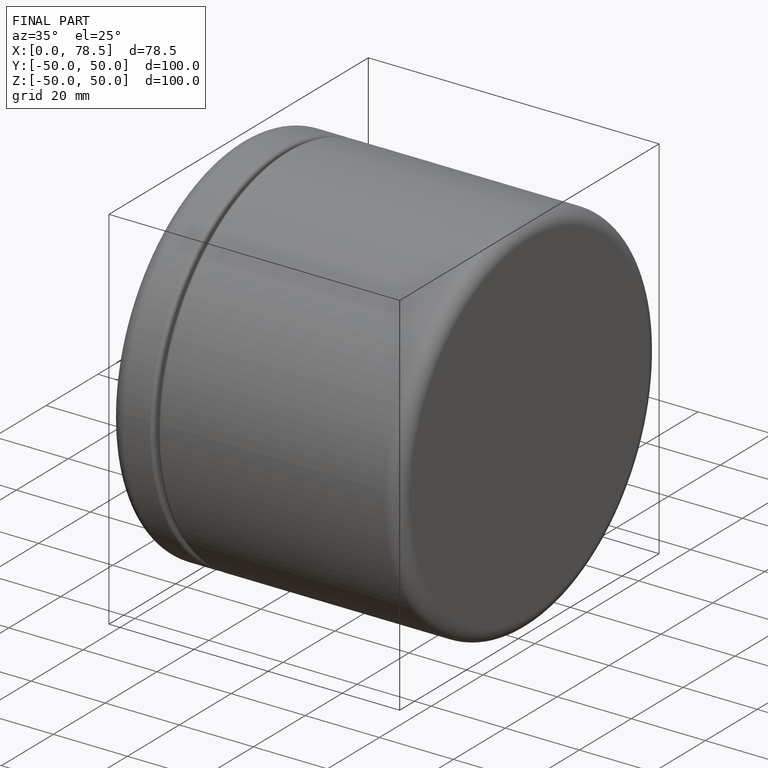
[diagram: finished part — iso view with bounding-box wireframe]
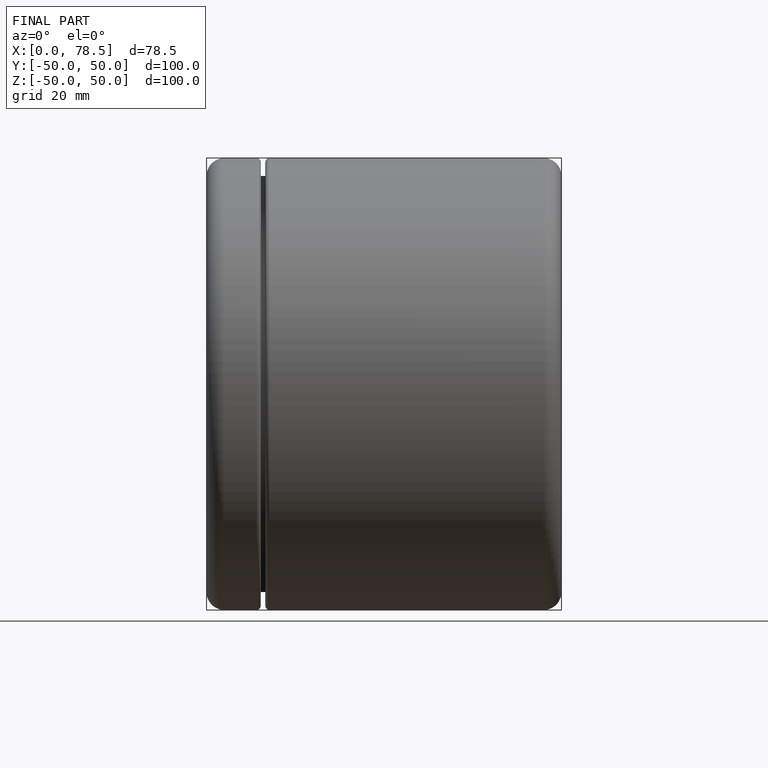
[diagram: finished part — front view with bounding-box wireframe]
